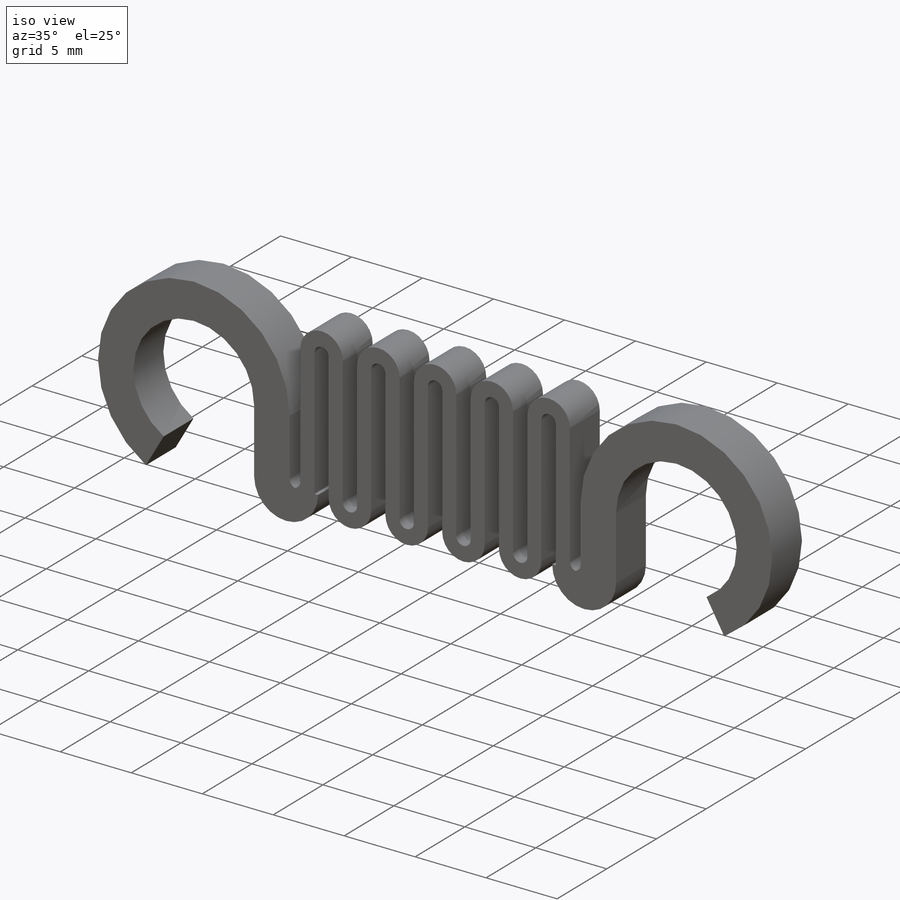
[diagram: iso view]
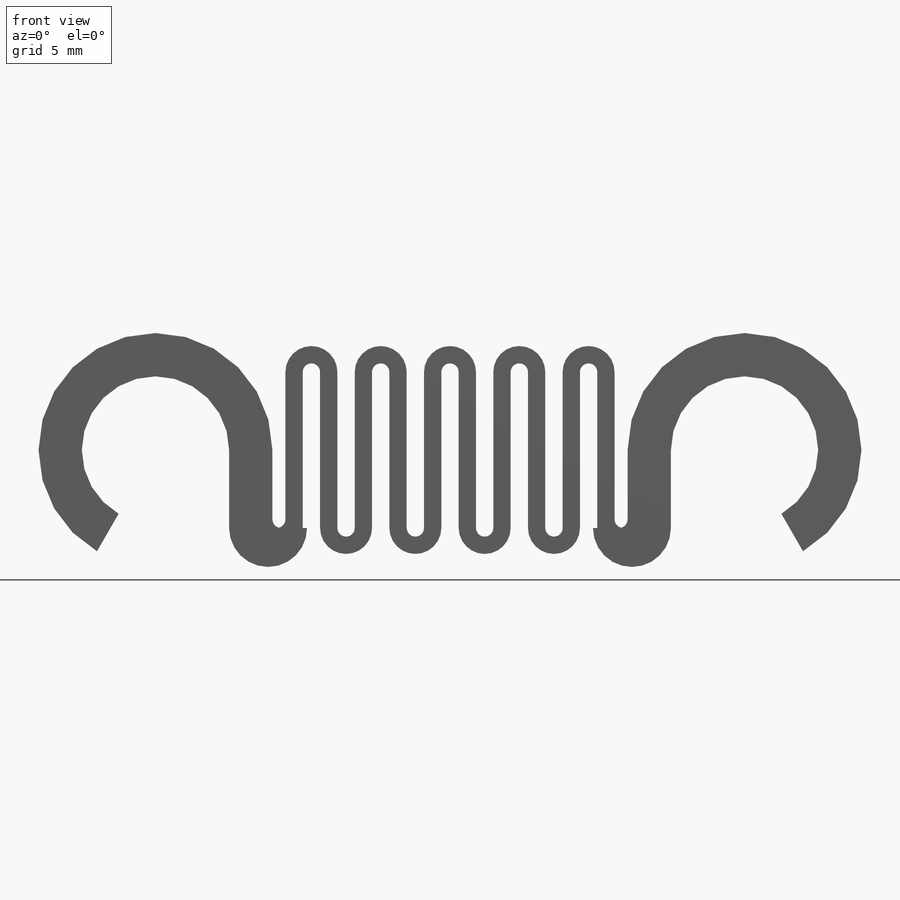
[diagram: front view]
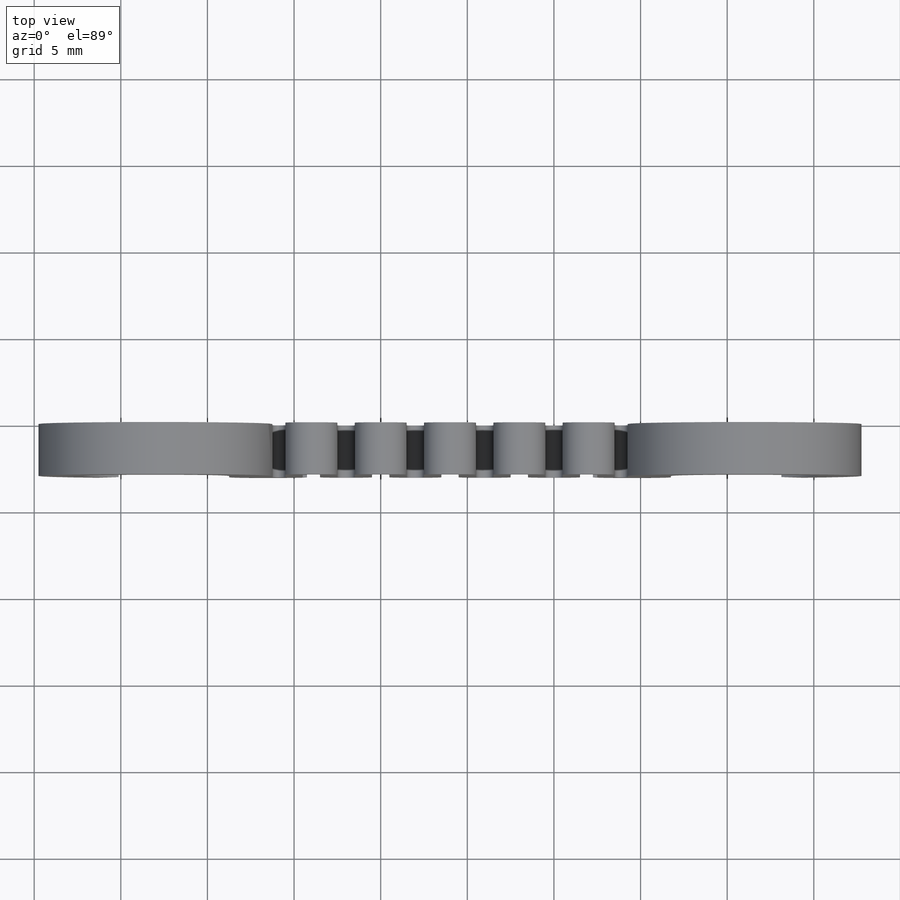
[diagram: top view]
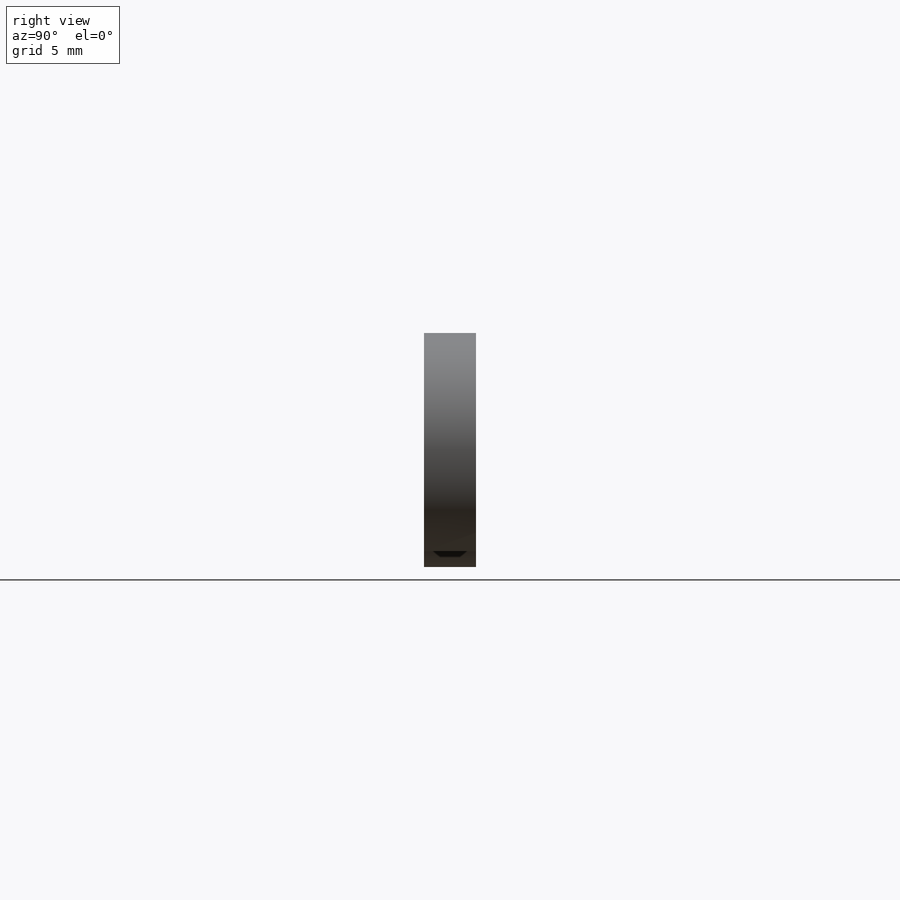
[diagram: right view]
SOLIDWORKS PART (.sldprt)
format: sldprt  version: not decoded by parser v0  size: 317,952 bytes
history: native  units: mm
features: sketch x4, pattern_linear x2, material x1, plane x1, fillet x1 (+11 scaffold rows collapsed)
feature tree (20):
  scaffold x11  (default folders/planes/origin — collapsed)
  material  "Material <not specified>"
  sketch  "Sketch1"  dims[c1.D1=9.0mm c1.D2=2.0mm c2.D1=3.0mm c2.D5=1.0mm c2.D6=10.0mm c2.D7=5.0mm]
  sketch  "Sketch2"  dims[c1.D1=5.5mm c1.D2=4.5mm c2.D2=120.0deg c2.D5=2.5mm c2.D6=1.0mm c2.D7=5.0mm]
  sketch  "Sketch3"  dims[D1=41.0mm]
  plane  "Plane1"
  pattern_linear  "LPattern-Springs"  Count1=5 Count2=1 Spacing1=4mm Spacing2=10mm
  sketch  "Sketch4"
  pattern_linear  "Extrude-Thin2"  Spacing1=2.5mm Spacing2=1mm  [1 undecoded]
  fillet  "Fillet1"  Radius=0.5mm
decode coverage: 6 of 7 modeling features carry decoded parameters
note: 1 parameter value undecoded
note: suppression state not decoded; provenance and decode notes live in map.json
